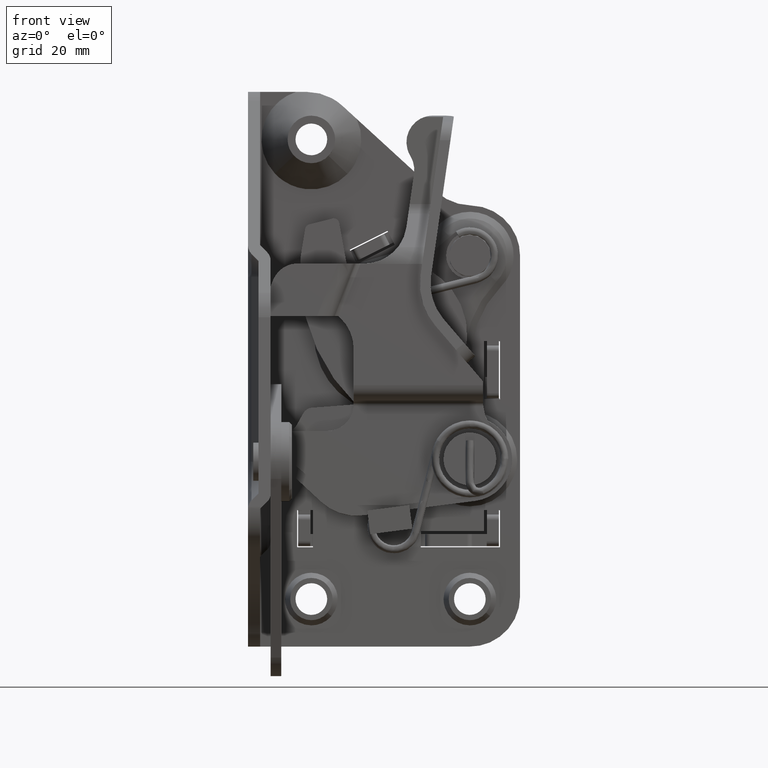
[diagram: clean part render]
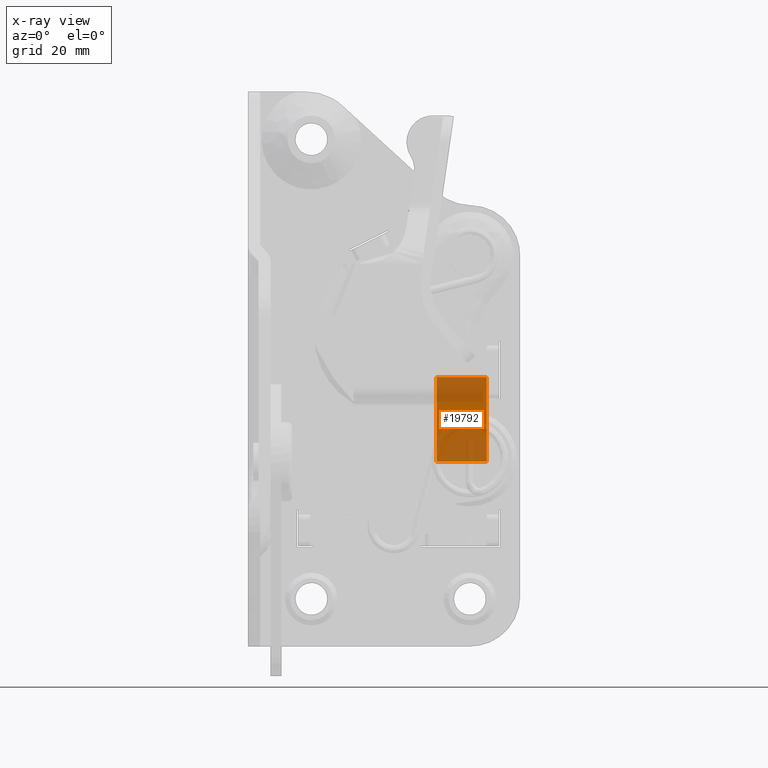
[diagram: x-ray — body ghosted, one internal face saturated and labeled with its STEP entity id]
A machine part, front view, then the same camera in x-ray: the body is ghosted and one INTERNAL B-rep face — a face not visible from any outside direction — is saturated and labeled: STEP entity #19792.
In plain terms, the highlighted face is a freeform B-spline surface patch.
Its self-contained STEP definition (entity closure, byte-faithful):
#19706=CARTESIAN_POINT('',(35.700000000000003,36.0,16.0));
#19707=VERTEX_POINT('',#19706);
#19708=CARTESIAN_POINT('',(35.700000000000003,36.0,2.204291E-015));
#19709=VERTEX_POINT('',#19708);
#19710=CARTESIAN_POINT('',(35.700000000000003,36.0,16.0));
#19711=CARTESIAN_POINT('',(35.700000000000003,36.0,2.204291E-015));
#19712=QUASI_UNIFORM_CURVE('',1,(#19710,#19711),.UNSPECIFIED.,.F.,.U.);
#19713=EDGE_CURVE('',#19707,#19709,#19712,.T.);
#19765=CARTESIAN_POINT('',(35.225475787085003,36.0,-0.799199968988894));
#19766=CARTESIAN_POINT('',(35.225475787085003,36.0,16.799200398142339));
#19767=CARTESIAN_POINT('',(45.674525911647393,36.0,-0.799199968988894));
#19768=CARTESIAN_POINT('',(45.674525911647393,36.0,16.799200398142339));
#19769=B_SPLINE_SURFACE_WITH_KNOTS('',1,1,((#19765,#19767),(#19766,#19768)),.UNSPECIFIED.,.F.,.F.,.U.,(2,2),(2,2),(0.0,17.598400367131230),(0.0,10.449050124562380),.UNSPECIFIED.);
#19770=CARTESIAN_POINT('',(45.200000000000003,36.0,16.0));
#19771=VERTEX_POINT('',#19770);
#19772=CARTESIAN_POINT('',(45.200000000000003,36.0,2.204291E-015));
#19773=VERTEX_POINT('',#19772);
#19774=CARTESIAN_POINT('',(45.200000000000003,36.0,16.0));
#19775=CARTESIAN_POINT('',(45.200000000000003,36.0,2.204291E-015));
#19776=QUASI_UNIFORM_CURVE('',1,(#19774,#19775),.UNSPECIFIED.,.F.,.U.);
#19777=EDGE_CURVE('',#19771,#19773,#19776,.T.);
#19778=ORIENTED_EDGE('',*,*,#19777,.F.);
#19779=CARTESIAN_POINT('',(35.700000000000003,36.0,16.0));
#19780=CARTESIAN_POINT('',(45.200000000000003,36.0,16.0));
#19781=QUASI_UNIFORM_CURVE('',1,(#19779,#19780),.UNSPECIFIED.,.F.,.U.);
#19782=EDGE_CURVE('',#19707,#19771,#19781,.T.);
#19783=ORIENTED_EDGE('',*,*,#19782,.F.);
#19784=ORIENTED_EDGE('',*,*,#19713,.T.);
#19785=CARTESIAN_POINT('',(35.700000000000003,36.0,2.204291E-015));
#19786=CARTESIAN_POINT('',(45.200000000000003,36.0,2.204291E-015));
#19787=QUASI_UNIFORM_CURVE('',1,(#19785,#19786),.UNSPECIFIED.,.F.,.U.);
#19788=EDGE_CURVE('',#19709,#19773,#19787,.T.);
#19789=ORIENTED_EDGE('',*,*,#19788,.T.);
#19790=EDGE_LOOP('',(#19778,#19783,#19784,#19789));
#19791=FACE_OUTER_BOUND('',#19790,.T.);
#19792=ADVANCED_FACE('',(#19791),#19769,.F.);